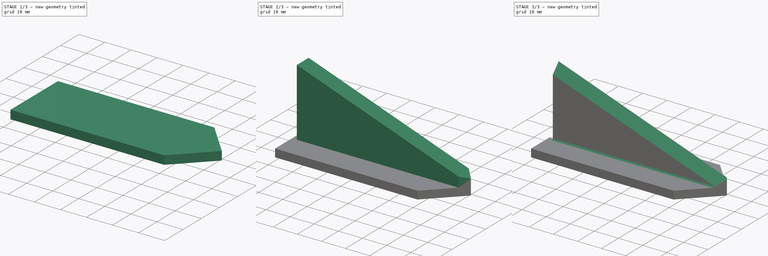
[diagram: build sequence overview — one tinted view per stage of 3, left to right]
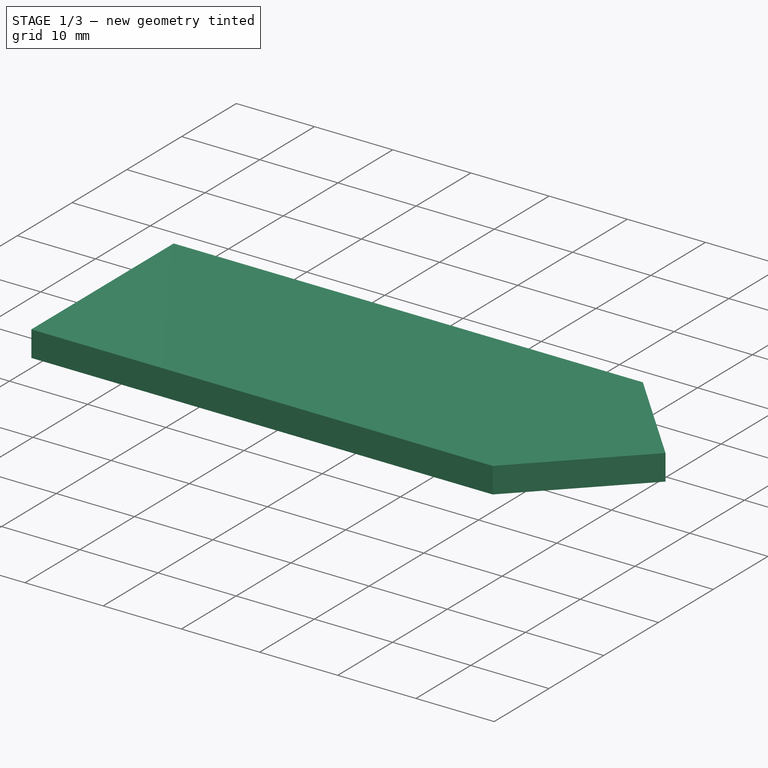
[diagram: stage 1 of 3 — iso view after this stage's code; geometry added in this stage tinted green]
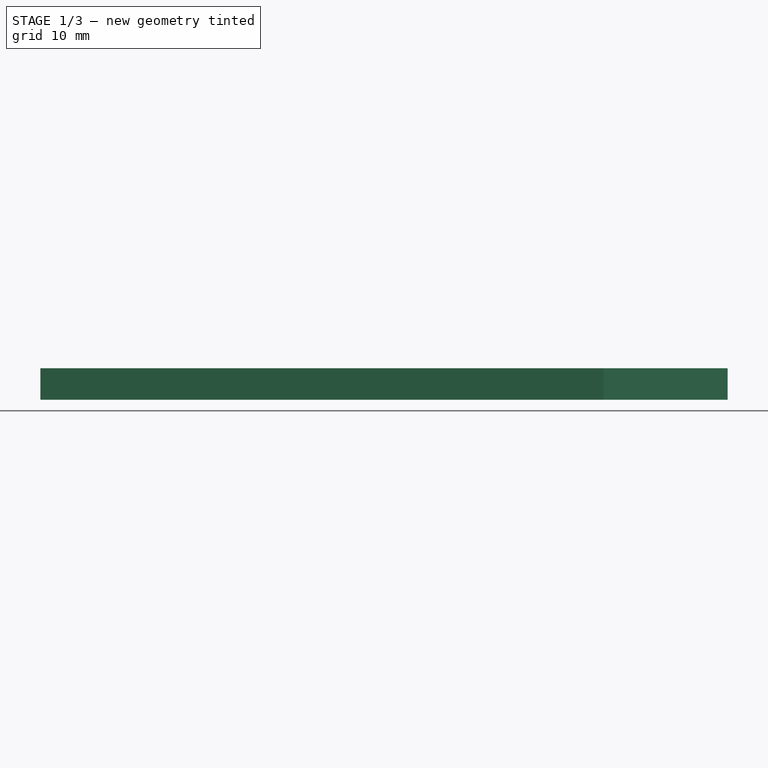
[diagram: stage 1 of 3 — front view after this stage's code; geometry added in this stage tinted green]
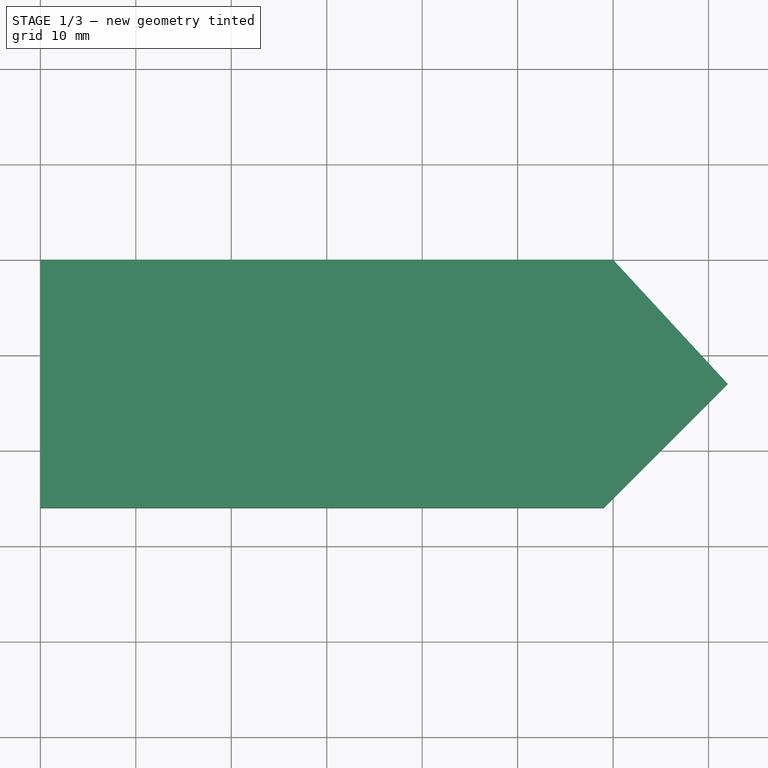
[diagram: stage 1 of 3 — top view after this stage's code; geometry added in this stage tinted green]
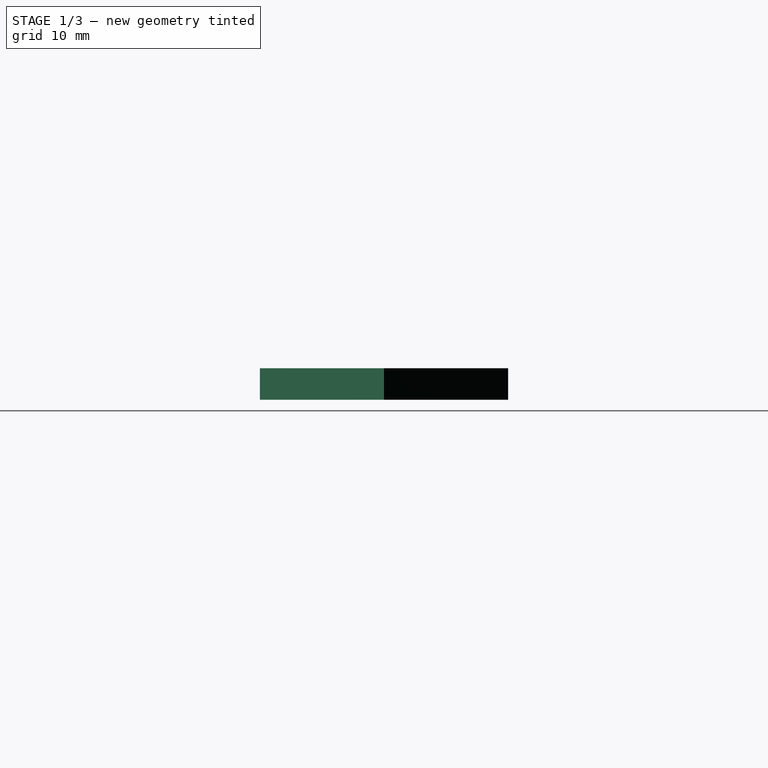
[diagram: stage 1 of 3 — right view after this stage's code; geometry added in this stage tinted green]
FCSTD DOCUMENT  (FreeCAD 0.18R4 (GitTag))
Label: SensorCover
License: All rights reserved
LicenseURL: http://en.wikipedia.org/wiki/All_rights_reserved
objects: Sketcher::SketchObject×6, PartDesign::Pad×4, PartDesign::Pocket×2, PartDesign::Chamfer×2, PartDesign::Body×1
note: 21 computed .brp shape members not serialized (recipe doc carries the construction recipe); baked Part::Feature solids carry a one-line shape summary decoded from their .brp

FEATURE [Sketcher::SketchObject] Sketch
  MapMode = 5
  Support = -> [XY_Plane]
  sketch-geometry (5):
    g0: LineSegment StartX=0 StartY=0 StartZ=0 EndX=60 EndY=0 EndZ=0
    g1: LineSegment StartX=59 StartY=-26 StartZ=0 EndX=0 EndY=-26 EndZ=0
    g2: LineSegment StartX=0 StartY=-26 StartZ=0 EndX=0 EndY=0 EndZ=0
    g3: LineSegment StartX=59 StartY=-26 StartZ=0 EndX=72 EndY=-13 EndZ=0
    g4: LineSegment StartX=72 StartY=-13 StartZ=0 EndX=60 EndY=0 EndZ=0
  constraints (13):
    c: Coincident(g1,g2)
    c: Coincident(g2,g0)
    c: Horizontal(g0)
    c: Horizontal(g1)
    c: Vertical(g2)
    c: Coincident(g0,g-1)
    c: Coincident(g4,g3)
    c: Coincident(g4,g0)
    c: DistanceY(g2,g2) = 26
    c: DistanceX(g0,g0) = 60
    c: DistanceX(g0,g3) = 12
    c: DistanceY(g3,g0) = 13
    c: Coincident(g3,g1)
FEATURE [PartDesign::Pad] Pad
  Length = 0.1
  Length2 = 100
  Profile = -> Sketch
  Refine = true
  Type = 0
FEATURE [Sketcher::SketchObject] Sketch001
  ExternalGeometry = -> [Pad]
  MapMode = 5
  Placement = pos=(0,0,0.1) rot=(0,0,1;0rad)
  Support = -> [Pad]
  sketch-geometry (10):
    g0: LineSegment StartX=0 StartY=-1 StartZ=0 EndX=59.5 EndY=-1 EndZ=0
    g1: LineSegment StartX=58.5 StartY=-25 StartZ=0 EndX=0.001879 EndY=-25 EndZ=0
    g2: LineSegment StartX=59.5 StartY=-1 StartZ=0 EndX=70.5 EndY=-13 EndZ=0
    g3: LineSegment StartX=70.5 StartY=-13 StartZ=0 EndX=58.5 EndY=-25 EndZ=0
    g4: LineSegment StartX=0 StartY=0 StartZ=0 EndX=60 EndY=0 EndZ=0
    g5: LineSegment StartX=60 StartY=0 StartZ=0 EndX=72 EndY=-13 EndZ=0
    g6: LineSegment StartX=72 StartY=-13 StartZ=0 EndX=59 EndY=-26 EndZ=0
    g7: LineSegment StartX=59 StartY=-26 StartZ=0 EndX=0 EndY=-26 EndZ=0
    g8: LineSegment StartX=0 StartY=0 StartZ=0 EndX=0 EndY=-1 EndZ=0
    g9: LineSegment StartX=0.001879 StartY=-25 StartZ=0 EndX=0 EndY=-26 EndZ=0
  constraints (23):
    c: Horizontal(g0)
    c: Horizontal(g1)
    c: PointOnObject(g0,g-2)
    c: DistanceY(g0,g-1) = 1
    c: DistanceY(g-3,g1) = 1
    c: DistanceX(g0,g0) = 59.5
    c: Coincident(g2,g0)
    c: Coincident(g3,g2)
    c: DistanceX(g2,g-5) = 1.5
    c: DistanceY(g2,g-4) = 13
    c: Coincident(g4,g-1)
    c: Coincident(g4,g-4)
    c: Coincident(g5,g4)
    c: Coincident(g5,g-5)
    c: Coincident(g6,g-5)
    c: Coincident(g7,g-3)
    c: Horizontal(g7)
    c: Coincident(g8,g4)
    c: Coincident(g8,g0)
    c: Coincident(g9,g1)
    c: Coincident(g9,g7)
    c: Coincident(g5,g6)
    c: Coincident(g3,g1)
FEATURE [PartDesign::Pad] Pad001
  BaseFeature = -> Pad
  Length = 2.2
  Length2 = 100
  Profile = -> Sketch001
  Refine = true
  Type = 0
FEATURE [Sketcher::SketchObject] Sketch002
  ExternalGeometry = -> [Pad001]
  MapMode = 5
  Placement = pos=(0,0,2.3) rot=(0,0,1;0rad)
  Support = -> [Pad001]
  sketch-geometry (5):
    g0: LineSegment StartX=0 StartY=0 StartZ=0 EndX=60 EndY=0 EndZ=0
    g1: LineSegment StartX=60 StartY=0 StartZ=0 EndX=72 EndY=-13 EndZ=0
    g2: LineSegment StartX=72 StartY=-13 StartZ=0 EndX=59 EndY=-26 EndZ=0
    g3: LineSegment StartX=59 StartY=-26 StartZ=0 EndX=0 EndY=-26 EndZ=0
    g4: LineSegment StartX=0 StartY=-26 StartZ=0 EndX=0 EndY=0 EndZ=0
  constraints (10):
    c: Coincident(g-1,g0)
    c: Coincident(g0,g-4)
    c: Coincident(g0,g1)
    c: Coincident(g1,g-5)
    c: Coincident(g1,g2)
    c: Coincident(g2,g-6)
    c: Coincident(g2,g3)
    c: Coincident(g3,g-6)
    c: Coincident(g3,g4)
    c: Coincident(g4,g0)
FEATURE [PartDesign::Pad] Pad002
  BaseFeature = -> Pad001
  Length = 1
  Length2 = 100
  Profile = -> Sketch002
  Refine = true
  Type = 0
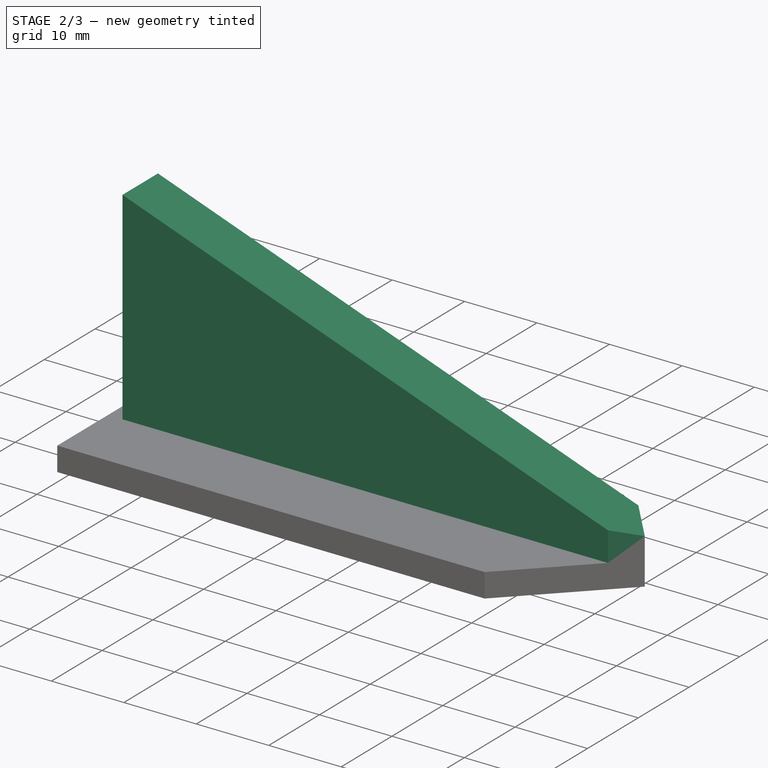
[diagram: stage 2 of 3 — iso view after this stage's code; geometry added in this stage tinted green]
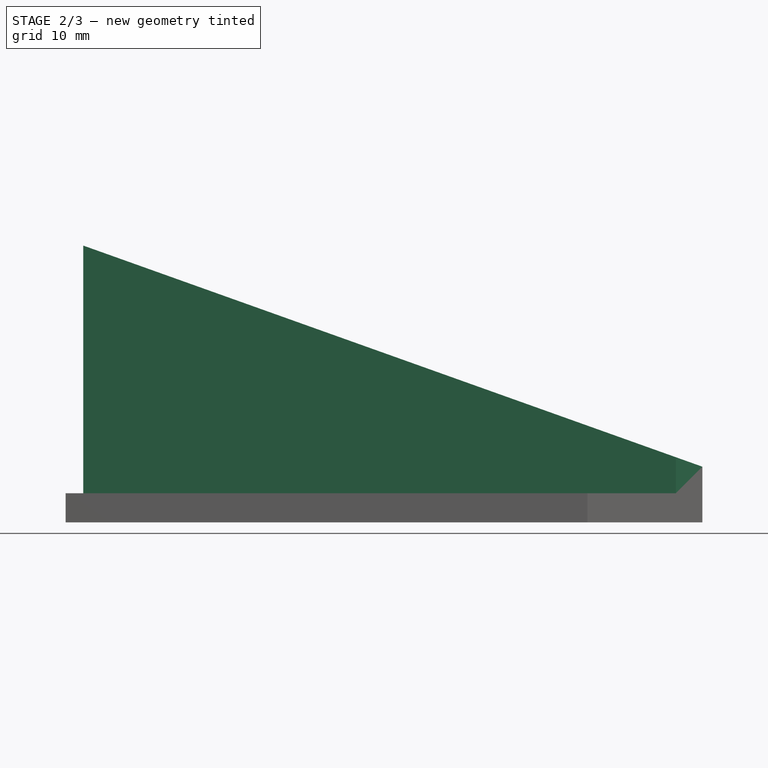
[diagram: stage 2 of 3 — front view after this stage's code; geometry added in this stage tinted green]
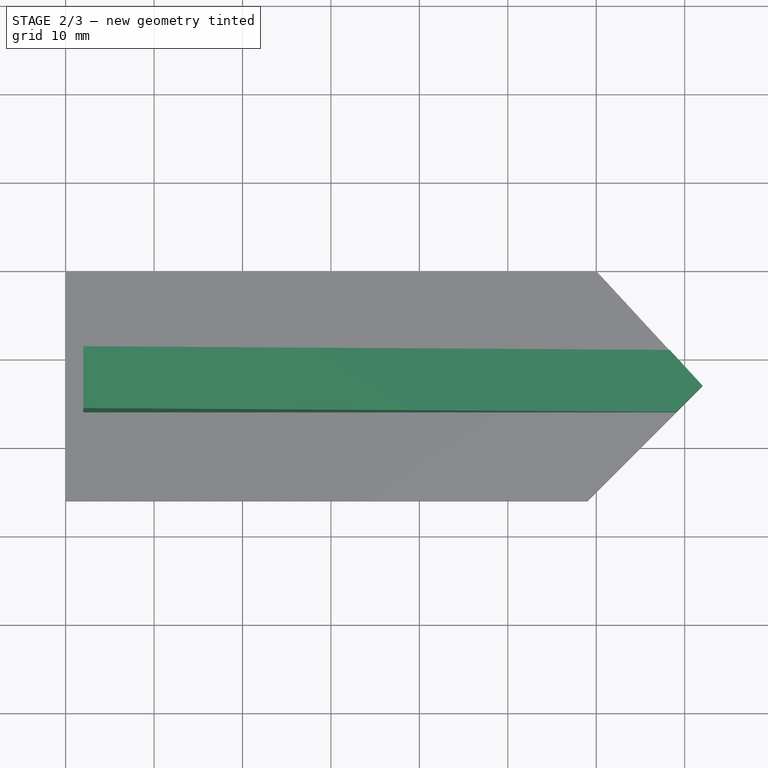
[diagram: stage 2 of 3 — top view after this stage's code; geometry added in this stage tinted green]
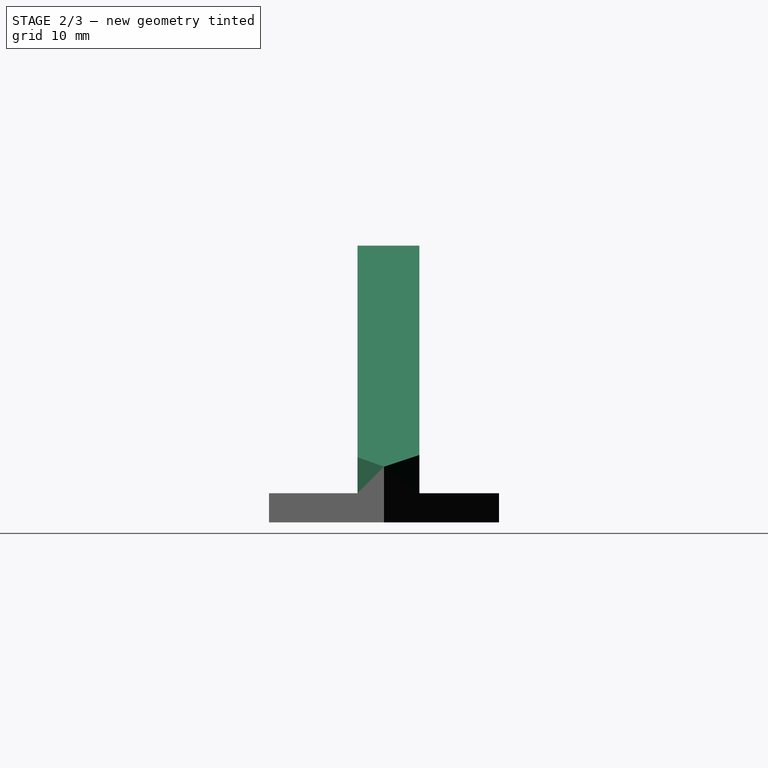
[diagram: stage 2 of 3 — right view after this stage's code; geometry added in this stage tinted green]
FEATURE [Sketcher::SketchObject] Sketch003
  ExternalGeometry = -> [Pad002]
  MapMode = 5
  Placement = pos=(0,0,3.3) rot=(0,0,1;0rad)
  Support = -> [Pad002]
  sketch-geometry (5):
    g0: LineSegment StartX=2 StartY=-9 StartZ=0 EndX=68.3077 EndY=-9 EndZ=0
    g1: LineSegment StartX=69 StartY=-16 StartZ=0 EndX=2 EndY=-16 EndZ=0
    g2: LineSegment StartX=2 StartY=-16 StartZ=0 EndX=2 EndY=-9 EndZ=0
    g3: LineSegment StartX=68.3077 StartY=-9 StartZ=0 EndX=72 EndY=-13 EndZ=0
    g4: LineSegment StartX=72 StartY=-13 StartZ=0 EndX=69 EndY=-16 EndZ=0
  constraints (14):
    c: Coincident(g1,g2)
    c: Coincident(g2,g0)
    c: Horizontal(g0)
    c: Horizontal(g1)
    c: Vertical(g2)
    c: DistanceY(g2,g2) = 7
    c: DistanceX(g-1,g0) = 2
    c: DistanceY(g0,g-1) = 9
    c: PointOnObject(g0,g-3)
    c: PointOnObject(g1,g-4)
    c: Coincident(g0,g3)
    c: Coincident(g3,g-4)
    c: Coincident(g3,g4)
    c: Coincident(g4,g1)
FEATURE [PartDesign::Pad] Pad003
  BaseFeature = -> Pad002
  Length = 28
  Length2 = 100
  Profile = -> Sketch003
  Refine = true
  Type = 0
FEATURE [Sketcher::SketchObject] Sketch004
  ExternalGeometry = -> [Pad003]
  MapMode = 5
  Placement = pos=(0,-16,0) rot=(1,0,0;1.5708rad)
  Support = -> [Pad003]
  sketch-geometry (3):
    g0: LineSegment StartX=2 StartY=31.3 StartZ=0 EndX=72 EndY=6.3 EndZ=0
    g1: LineSegment StartX=2 StartY=31.3 StartZ=0 EndX=72 EndY=31.3 EndZ=0
    g2: LineSegment StartX=72 StartY=31.3 StartZ=0 EndX=72 EndY=6.3 EndZ=0
  constraints (7):
    c: Coincident(g0,g-3)
    c: PointOnObject(g0,g-4)
    c: DistanceY(g-5,g0) = 3
    c: Coincident(g0,g1)
    c: Coincident(g1,g-4)
    c: Coincident(g1,g2)
    c: Coincident(g2,g0)
FEATURE [PartDesign::Pocket] Pocket
  BaseFeature = -> Pad003
  Length = 8
  Length2 = 100
  Profile = -> Sketch004
  Refine = true
  Type = 0
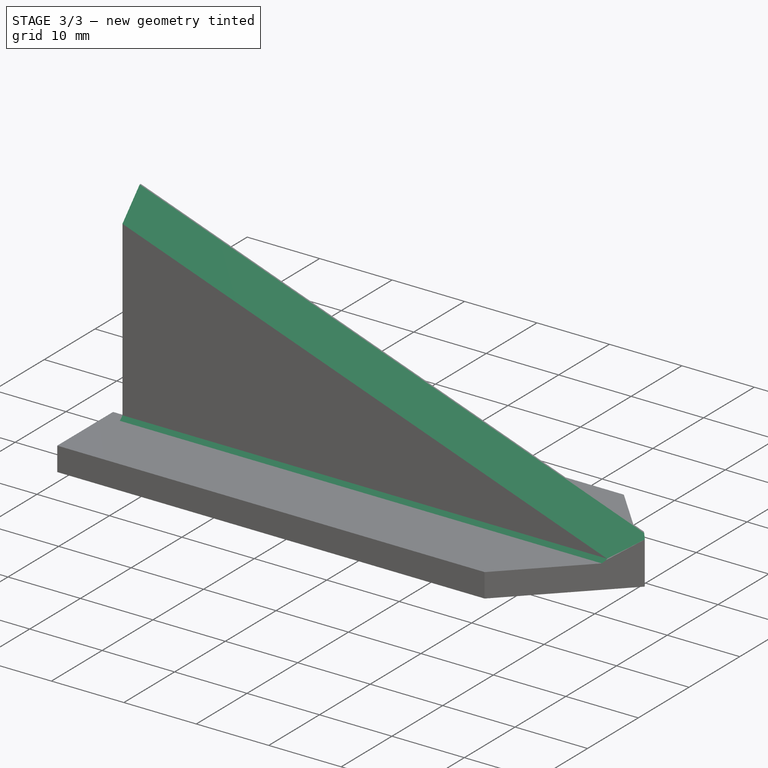
[diagram: stage 3 of 3 — iso view after this stage's code; geometry added in this stage tinted green]
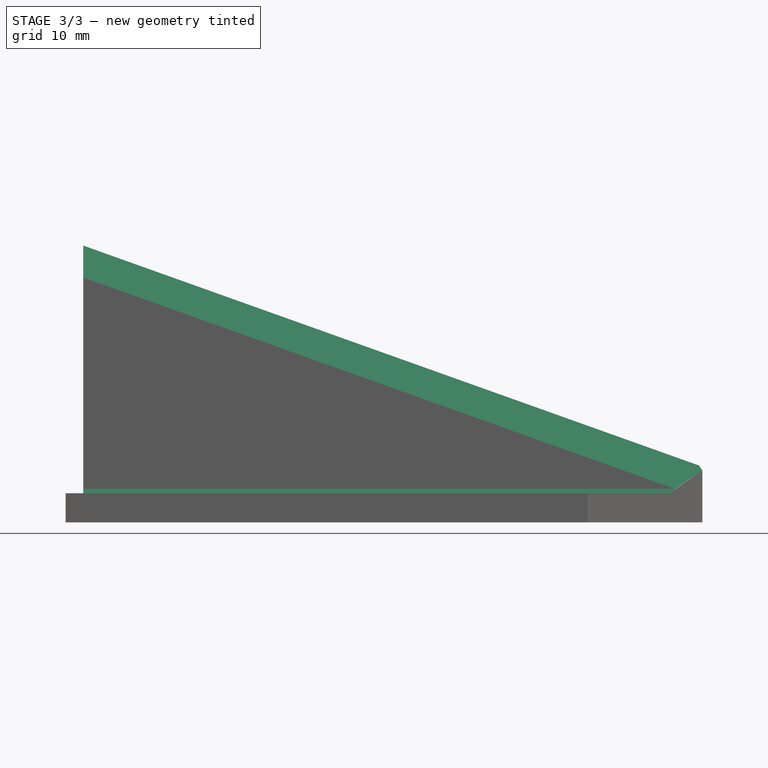
[diagram: stage 3 of 3 — front view after this stage's code; geometry added in this stage tinted green]
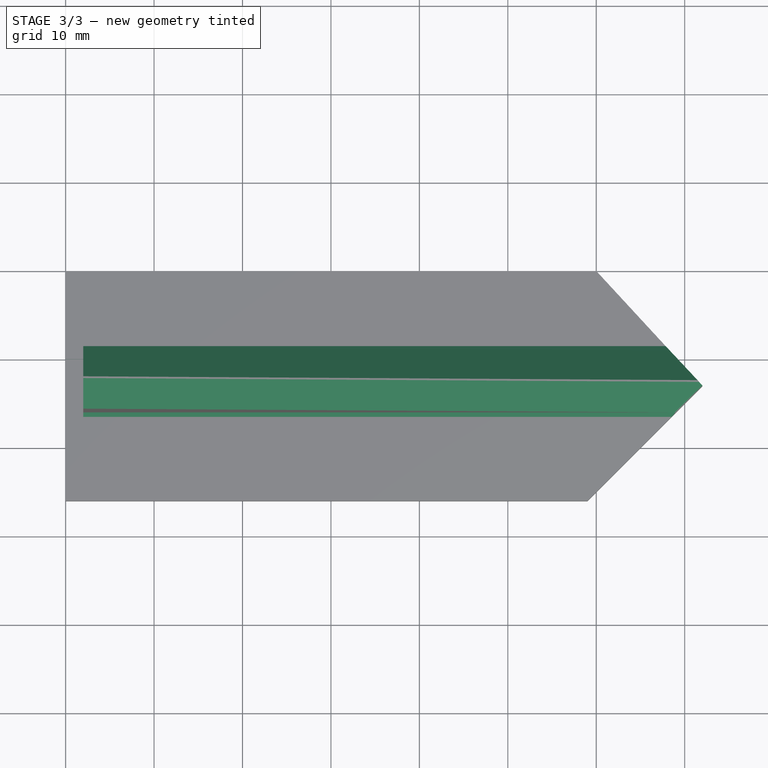
[diagram: stage 3 of 3 — top view after this stage's code; geometry added in this stage tinted green]
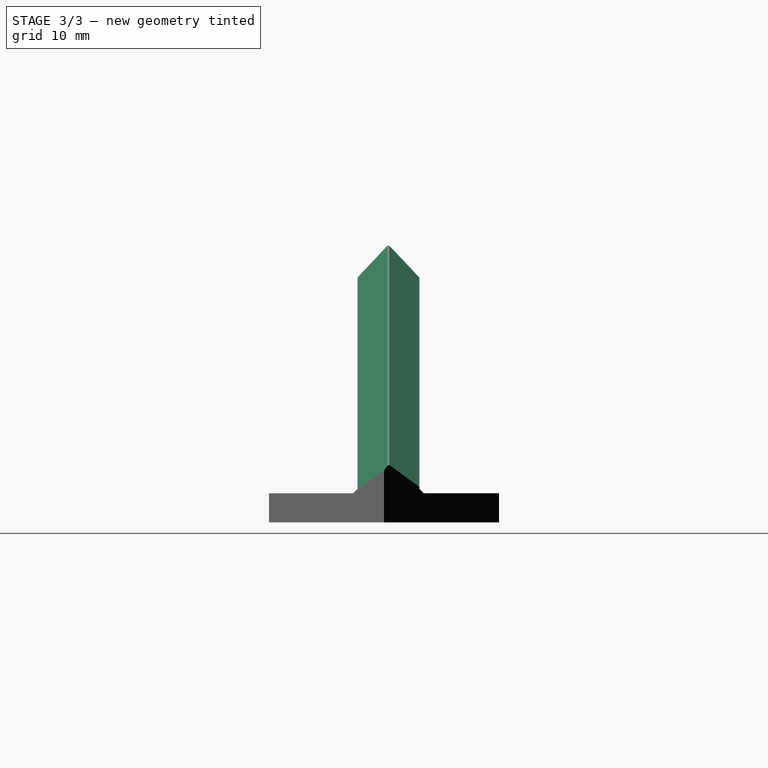
[diagram: stage 3 of 3 — right view after this stage's code; geometry added in this stage tinted green]
FEATURE [Sketcher::SketchObject] Sketch005
  ExternalGeometry = -> [Pocket]
  MapMode = 5
  Placement = pos=(0,0,0) rot=(0.57735,-0.57735,-0.57735;2.0944rad)
  Support = -> [Pocket]
  sketch-geometry (4):
    g0: LineSegment StartX=10 StartY=2.3 StartZ=0 EndX=15 EndY=2.3 EndZ=0
    g1: LineSegment StartX=15 StartY=2.3 StartZ=0 EndX=15 EndY=5.3 EndZ=0
    g2: LineSegment StartX=15 StartY=5.3 StartZ=0 EndX=10 EndY=5.3 EndZ=0
    g3: LineSegment StartX=10 StartY=5.3 StartZ=0 EndX=10 EndY=2.3 EndZ=0
  constraints (12):
    c: Coincident(g0,g1)
    c: Coincident(g1,g2)
    c: Coincident(g2,g3)
    c: Coincident(g3,g0)
    c: Horizontal(g0)
    c: Horizontal(g2)
    c: Vertical(g1)
    c: Vertical(g3)
    c: PointOnObject(g0,g-3)
    c: DistanceX(g2,g2) = 5
    c: DistanceX(g-5,g0) = 1
    c: DistanceY(g1,g1) = 3
FEATURE [PartDesign::Pocket] Pocket001
  BaseFeature = -> Pocket
  Length = 60
  Length2 = 100
  Profile = -> Sketch005
  Refine = true
  Type = 0
FEATURE [PartDesign::Chamfer] Chamfer
  Base = -> Pocket001 [Edge63,Edge64]
  BaseFeature = -> Pocket001
  Size = 3.4
FEATURE [PartDesign::Chamfer] Chamfer001
  Base = -> Chamfer [Edge9,Edge46]
  BaseFeature = -> Chamfer
  Size = 0.5
FEATURE [PartDesign::Body] Body
  Group = -> [Sketch,Pad,Sketch001,Pad001,Sketch002,Pad002,Sketch003,Pad003,Sketch004,Pocket,Sketch005,Pocket001,Chamfer,Chamfer001]
  Origin = -> Origin
  Tip = -> Chamfer001
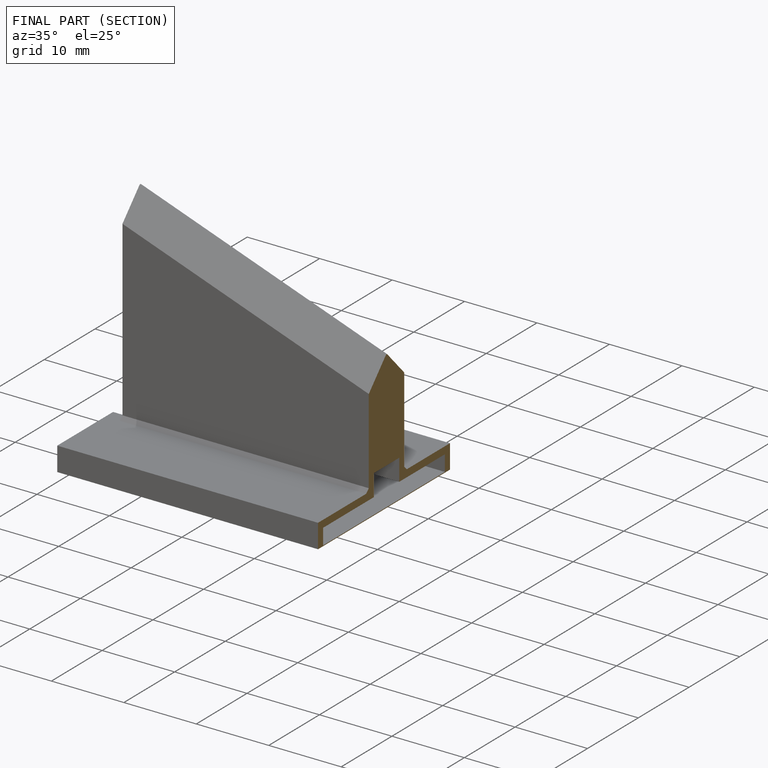
[diagram: finished part — half-section view (interior)]
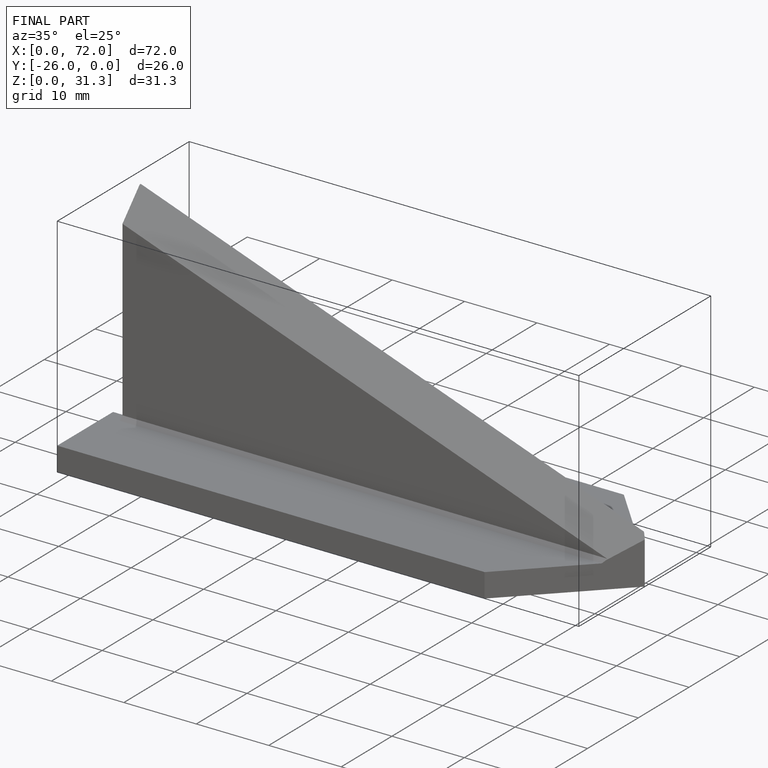
[diagram: finished part — iso view with bounding-box wireframe]
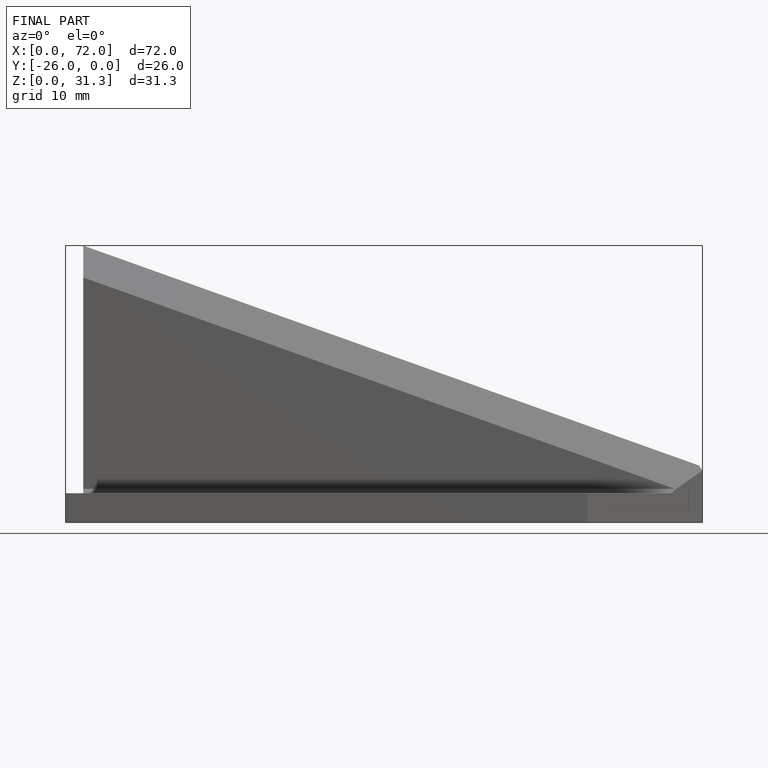
[diagram: finished part — front view with bounding-box wireframe]
